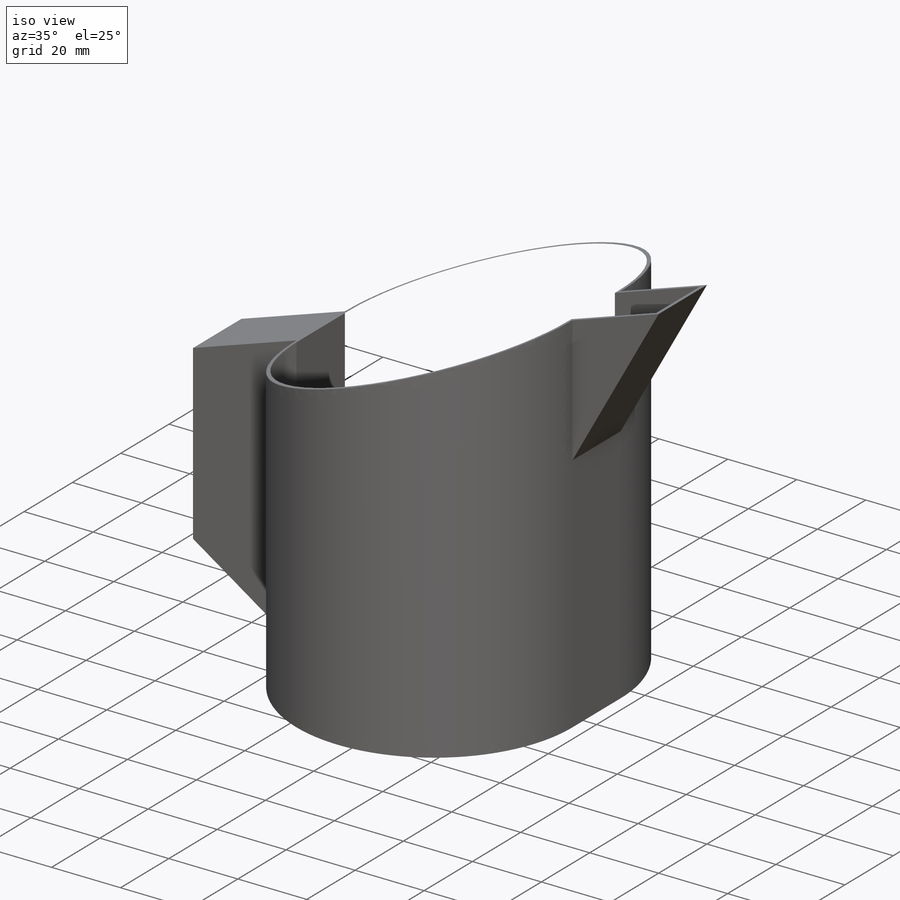
[diagram: iso view]
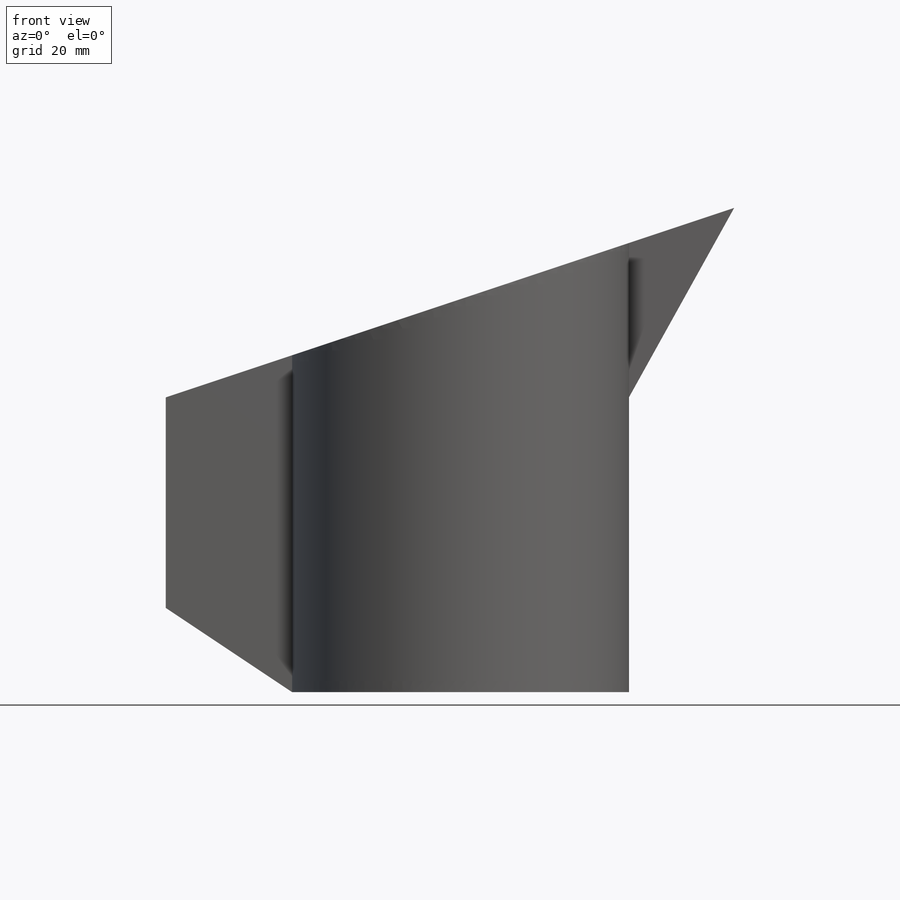
[diagram: front view]
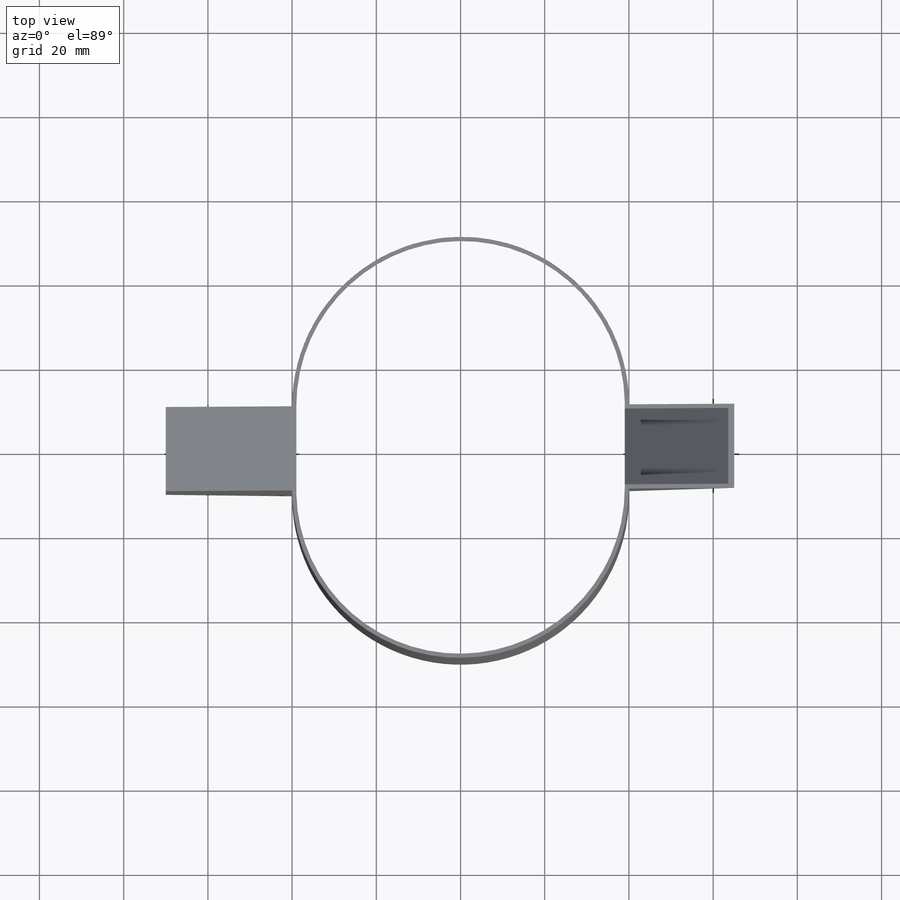
[diagram: top view]
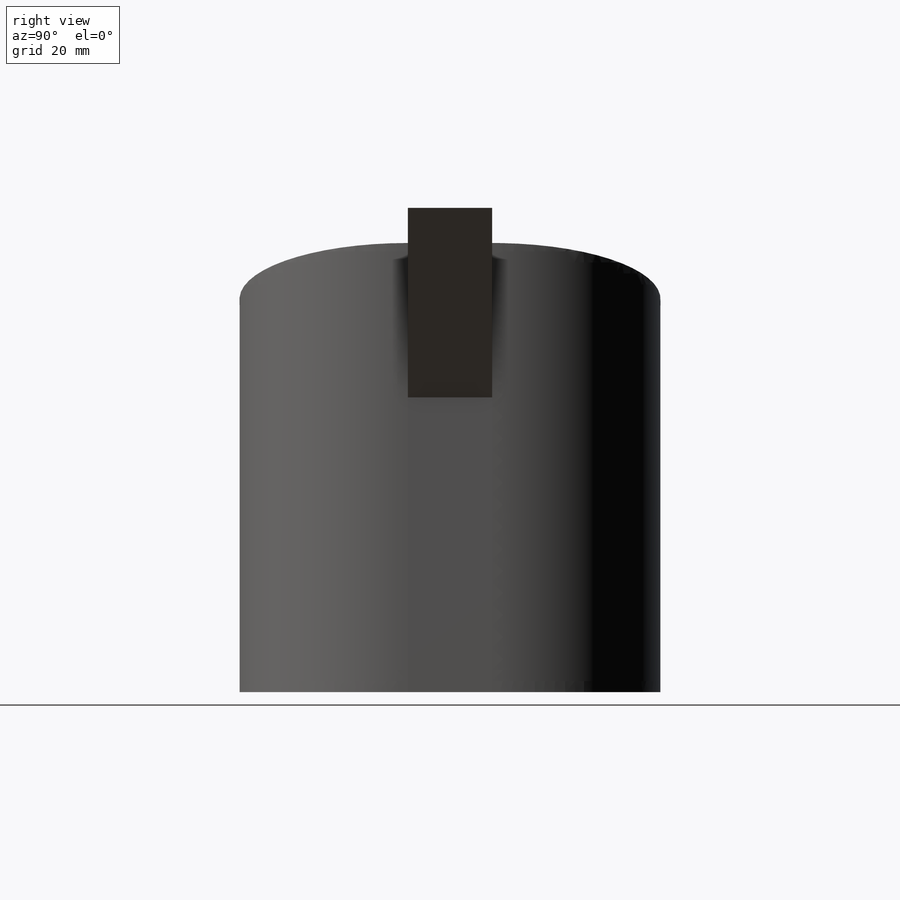
[diagram: right view]
SOLIDWORKS PART (.sldprt)
format: sldprt  version: not decoded by parser v0  size: 359,936 bytes
history: native  units: mm
features: sketch x3, extrude x2, material x1, cut_extrude x1, boolean_combine x1, shell x1 (+14 scaffold rows collapsed)
feature tree (23):
  scaffold x14  (default folders/planes/origin — collapsed)
  material  "Material <not specified>"
  sketch  "Sketch1"  dims[D1=40.0mm]
  extrude  "Extrude1"  Depth=115mm
  sketch  "Sketch2"  dims[D1=50.0mm]
  extrude  "Extrude2"  Depth=20mm
  sketch  "Sketch3"
  cut_extrude  "Cut-Extrude1"  Depth=100mm
  boolean_combine  "Combine1"
  shell  "Shell1"  Thickness=1mm
decode coverage: 6 of 8 modeling features carry decoded parameters
note: suppression state not decoded; provenance and decode notes live in map.json
